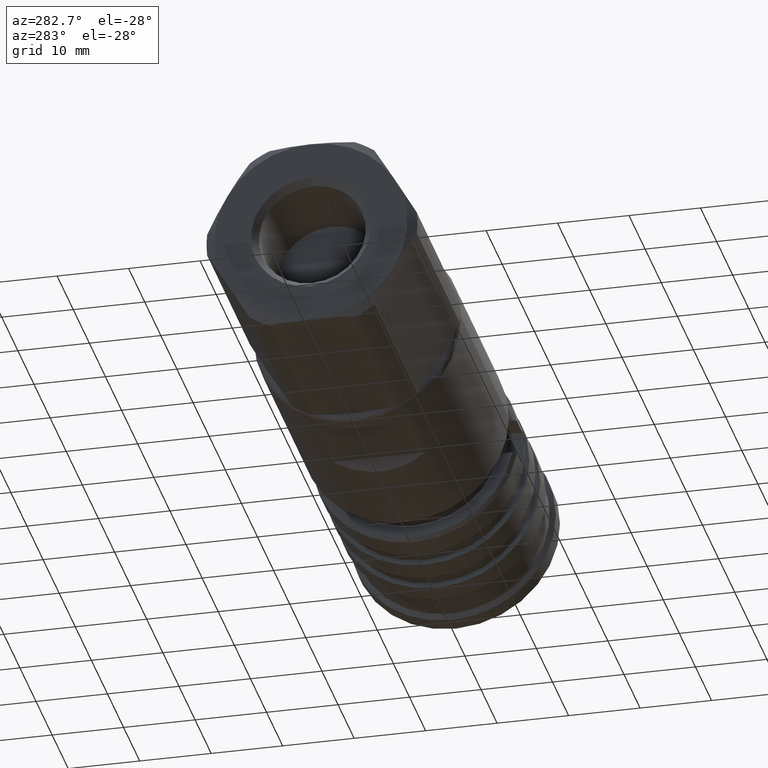
[diagram: clean part render]
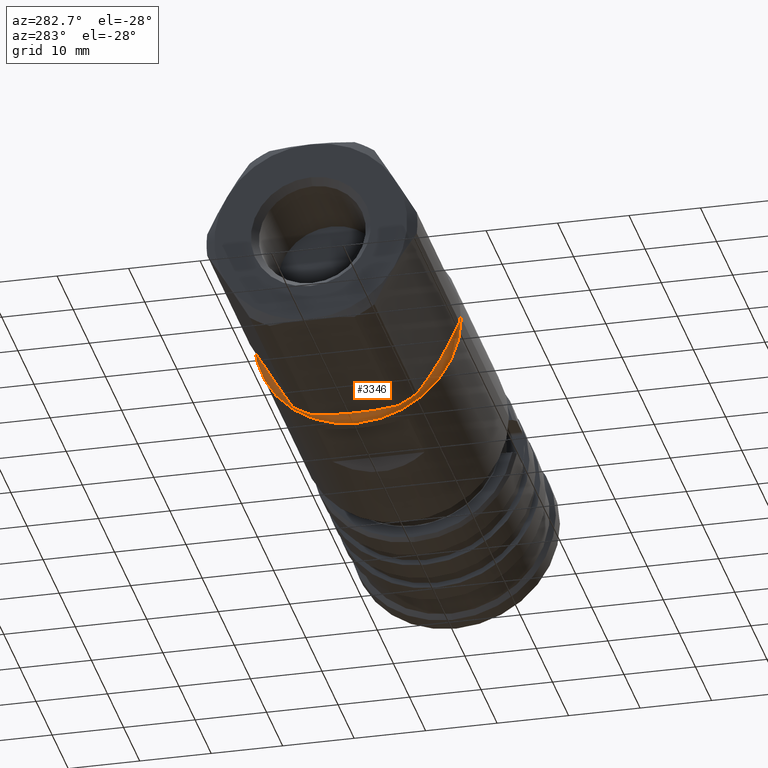
[diagram: same view with one face highlighted and labeled with its STEP entity id]
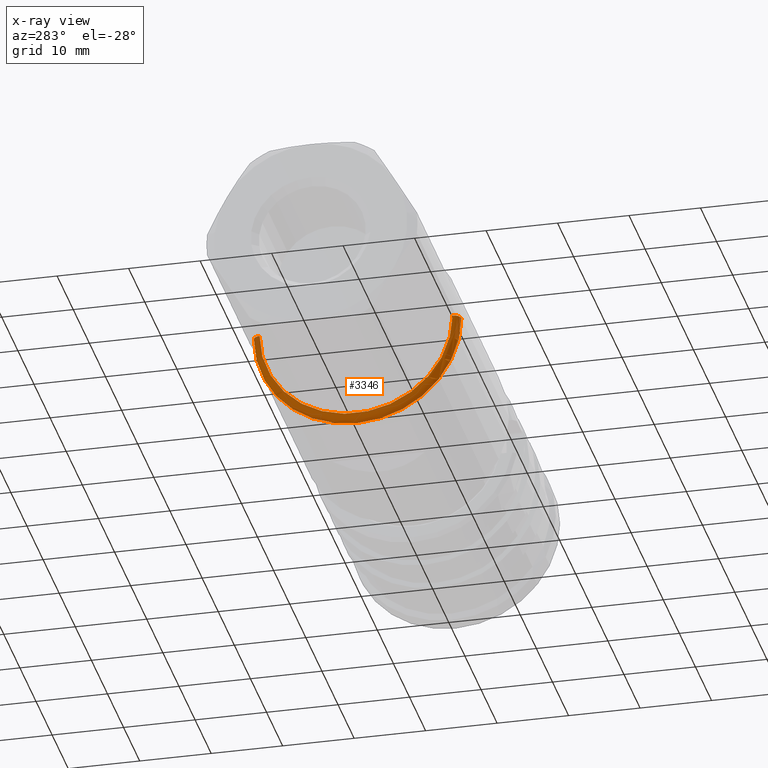
[diagram: x-ray of the same camera — body ghosted, the highlighted face saturated]
A machine part, auxiliary view. The second image highlights one B-rep face of the part: STEP entity #3346.
The next image is the same camera in x-ray: the body ghosted, the highlighted face saturated — about 2% of this face is hidden behind the body in this view.
In plain terms, the highlighted toroidal blend (fillet) surface has major radius 13.5 mm and minor (blend) radius 1 mm.
Its self-contained STEP definition (entity closure, byte-faithful):
#133 = VERTEX_POINT ( 'NONE', #595 ) ;
#135 = VERTEX_POINT ( 'NONE', #554 ) ;
#136 = VERTEX_POINT ( 'NONE', #608 ) ;
#137 = VERTEX_POINT ( 'NONE', #609 ) ;
#269 = CARTESIAN_POINT ( 'NONE',  ( -16.55000000000000800, 13.50000000000000400, 1.058502858223884200E-015 ) ) ;
#270 = CARTESIAN_POINT ( 'NONE',  ( -16.55000000000000800, -13.49999999999997900, 8.398036178838720400E-015 ) ) ;
#288 = DIRECTION ( 'NONE',  ( 4.663150446814907600E-016, 2.106022274728116900E-016, 1.000000000000000000 ) ) ;
#296 = DIRECTION ( 'NONE',  ( -4.663150446814907600E-016, -3.330669073875470100E-016, -1.000000000000000000 ) ) ;
#298 = DIRECTION ( 'NONE',  ( 1.000000000000000000, 0.0000000000000000000, -4.663150446814903700E-016 ) ) ;
#310 = DIRECTION ( 'NONE',  ( -1.000000000000000000, 0.0000000000000000000, 4.663150446814902700E-016 ) ) ;
#554 = CARTESIAN_POINT ( 'NONE',  ( -16.55000000000000800, 14.50000000000000400, -7.815225808520082500E-015 ) ) ;
#595 = CARTESIAN_POINT ( 'NONE',  ( -17.55000000000001100, -13.49999999999997900, 8.864351223520210100E-015 ) ) ;
#608 = CARTESIAN_POINT ( 'NONE',  ( -16.55000000000000800, -14.49999999999998200, 3.619452364482434300E-015 ) ) ;
#609 = CARTESIAN_POINT ( 'NONE',  ( -17.55000000000001100, 13.50000000000000400, 1.186359266828224100E-015 ) ) ;
#953 = ORIENTED_EDGE ( 'NONE', *, *, #2810, .F. ) ;
#954 = ORIENTED_EDGE ( 'NONE', *, *, #2927, .F. ) ;
#955 = ORIENTED_EDGE ( 'NONE', *, *, #2812, .T. ) ;
#956 = ORIENTED_EDGE ( 'NONE', *, *, #2928, .F. ) ;
#1202 = CIRCLE ( 'NONE', #3083, 1.000000000000000900 ) ;
#1205 = CIRCLE ( 'NONE', #3086, 1.000000000000000900 ) ;
#1354 = CIRCLE ( 'NONE', #2930, 14.49999999999999300 ) ;
#1355 = CIRCLE ( 'NONE', #2778, 13.49999999999999100 ) ;
#1714 = FACE_OUTER_BOUND ( 'NONE', #2441, .T. ) ;
#1715 = TOROIDAL_SURFACE ( 'NONE', #3199, 13.49999999999999100, 1.000000000000000000 ) ;
#2224 = DIRECTION ( 'NONE',  ( 0.0000000000000000000, -1.000000000000000000, 3.330669073875469100E-016 ) ) ;
#2225 = DIRECTION ( 'NONE',  ( -1.000000000000000000, -8.272362552313708200E-017, 4.663150446814907600E-016 ) ) ;
#2226 = CARTESIAN_POINT ( 'NONE',  ( -17.55000000000001100, 1.161827188606352900E-014, 4.367947973788330000E-015 ) ) ;
#2227 = DIRECTION ( 'NONE',  ( 0.0000000000000000000, -1.000000000000000000, 3.330669073875469100E-016 ) ) ;
#2228 = DIRECTION ( 'NONE',  ( 1.000000000000000000, 8.272362552313708200E-017, -4.663150446814907600E-016 ) ) ;
#2229 = CARTESIAN_POINT ( 'NONE',  ( -16.55000000000000800, 1.170099551158666700E-014, 3.901632929106839600E-015 ) ) ;
#2441 = EDGE_LOOP ( 'NONE', ( #953, #954, #955, #956 ) ) ;
#2778 = AXIS2_PLACEMENT_3D ( 'NONE', #2226, #2225, #2224 ) ;
#2810 = EDGE_CURVE ( 'NONE', #135, #137, #1202, .T. ) ;
#2812 = EDGE_CURVE ( 'NONE', #136, #133, #1205, .T. ) ;
#2927 = EDGE_CURVE ( 'NONE', #136, #135, #1354, .T. ) ;
#2928 = EDGE_CURVE ( 'NONE', #137, #133, #1355, .T. ) ;
#2930 = AXIS2_PLACEMENT_3D ( 'NONE', #2229, #2228, #2227 ) ;
#3083 = AXIS2_PLACEMENT_3D ( 'NONE', #269, #288, #298 ) ;
#3086 = AXIS2_PLACEMENT_3D ( 'NONE', #270, #296, #310 ) ;
#3199 = AXIS2_PLACEMENT_3D ( 'NONE', #4005, #4004, #4003 ) ;
#3346 = ADVANCED_FACE ( 'NONE', ( #1714 ), #1715, .T. ) ;
#4003 = DIRECTION ( 'NONE',  ( 8.272362552313724300E-017, -1.000000000000000000, 3.330669073875468600E-016 ) ) ;
#4004 = DIRECTION ( 'NONE',  ( -1.000000000000000000, -8.272362552313708200E-017, 4.663150446814907600E-016 ) ) ;
#4005 = CARTESIAN_POINT ( 'NONE',  ( -16.55000000000000800, 1.170099551158666700E-014, 3.901632929106839600E-015 ) ) ;